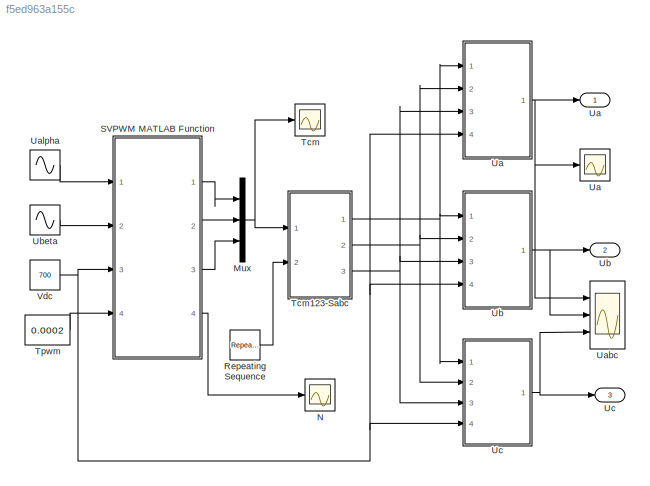
MODEL slx_f5ed963a155c
KIND model
BLOCK [Mux] Mux
  DisplayOption = bar
  Inputs = 3
  Ports = [3, 1]
BLOCK [Scope] N
  DataFormat = StructureWithTime
  Floating = off
  LimitDataPoints = off
  NumInputPorts = 1
  Ports = [1]
  SampleInput = on
  SampleTime = 0
  SaveName = N
  SaveToWorkspace = on
  ShowLegends = off
  YMax = 500
  YMin = -500
BLOCK [Reference] Repeating Sequence  REF=simulink/Sources/Repeating
Sequence
  Ports = [0, 1]
  SourceBlock = simulink/Sources/Repeating\nSequence
  SourceType = Repeating table
  rep_seq_t = [0 1/10000 1/5000]
  rep_seq_y = [0 1/10000 0]
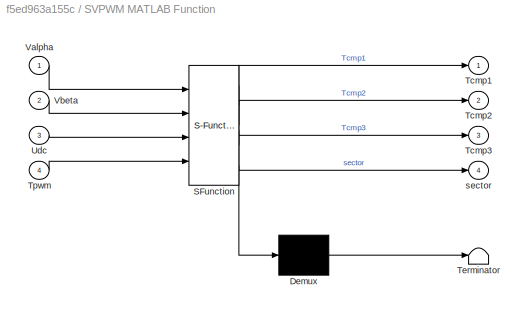
BLOCK [SubSystem] SVPWM MATLAB Function
  ErrorFcn = Stateflow.Translate.translate
  PermitHierarchicalResolution = ExplicitOnly
  Ports = [4, 4]
  RequestExecContextInheritance = off
  SFBlockType = MATLAB Function
  TreatAsAtomicUnit = on
BLOCK [Demux] SVPWM MATLAB Function/ Demux 
  Outputs = 1
  Ports = [1, 1]
BLOCK [S-Function] SVPWM MATLAB Function/ SFunction 
  EnableBusSupport = on
  FunctionName = sf_sfun
  PortCounts = [4 5]
  Ports = [4, 5]
  Tag = Stateflow S-Function svpwm_sfunction1 1
BLOCK [Terminator] SVPWM MATLAB Function/ Terminator 
BLOCK [Outport] SVPWM MATLAB Function/Tcmp1
  IconDisplay = Port number
BLOCK [Outport] SVPWM MATLAB Function/Tcmp2
  IconDisplay = Port number
  Port = 2
BLOCK [Outport] SVPWM MATLAB Function/Tcmp3
  IconDisplay = Port number
  Port = 3
BLOCK [Inport] SVPWM MATLAB Function/Tpwm
  IconDisplay = Port number
  Port = 4
BLOCK [Inport] SVPWM MATLAB Function/Udc
  IconDisplay = Port number
  Port = 3
BLOCK [Inport] SVPWM MATLAB Function/Valpha
  IconDisplay = Port number
BLOCK [Inport] SVPWM MATLAB Function/Vbeta
  IconDisplay = Port number
  Port = 2
BLOCK [Outport] SVPWM MATLAB Function/sector
  IconDisplay = Port number
  Port = 4
BLOCK [Scope] Tcm
  DataFormat = StructureWithTime
  Floating = off
  LimitDataPoints = off
  NumInputPorts = 1
  Ports = [1]
  SampleInput = on
  SampleTime = 0
  SaveName = Tcm
  SaveToWorkspace = on
  ShowLegends = off
  YMax = 500
  YMin = -500
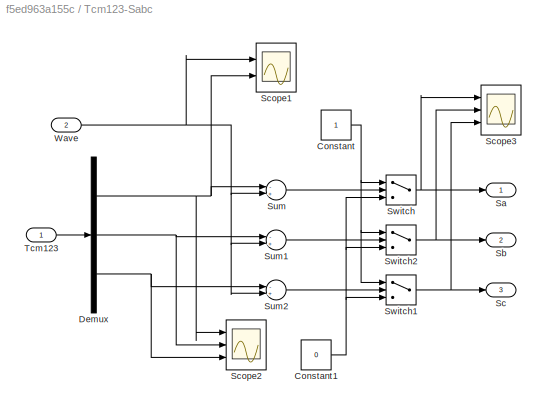
BLOCK [SubSystem] Tcm123-Sabc
  Ports = [2, 3]
  RequestExecContextInheritance = off
BLOCK [Constant] Tcm123-Sabc/Constant
BLOCK [Constant] Tcm123-Sabc/Constant1
  Value = 0
BLOCK [Demux] Tcm123-Sabc/Demux
  DisplayOption = bar
  Outputs = 3
  Ports = [1, 3]
BLOCK [Outport] Tcm123-Sabc/Sa
  IconDisplay = Port number
BLOCK [Outport] Tcm123-Sabc/Sb
  IconDisplay = Port number
  Port = 2
BLOCK [Outport] Tcm123-Sabc/Sc
  IconDisplay = Port number
  Port = 3
BLOCK [Scope] Tcm123-Sabc/Scope1
  DataFormat = StructureWithTime
  Floating = off
  LimitDataPoints = off
  NumInputPorts = 2
  Ports = [2]
  SampleTime = 0
  ShowLegends = off
  TimeRange = 0.028
  YMax = 8.5e-005~2.64e-005
  YMin = 0~2.45e-005
  ZoomMode = xonly
BLOCK [Scope] Tcm123-Sabc/Scope2
  DataFormat = StructureWithTime
  Floating = off
  LimitDataPoints = off
  NumInputPorts = 3
  Ports = [3]
  SampleTime = 0
  SaveName = ScopeData1
  ShowLegends = off
  TimeRange = 0.07000000000000001
  YMax = 6e-005~6e-005~6e-005
  YMin = 2.25e-005~2.25e-005~2.25e-005
  ZoomMode = xonly
BLOCK [Scope] Tcm123-Sabc/Scope3
  DataFormat = StructureWithTime
  Floating = off
  LimitDataPoints = off
  NumInputPorts = 3
  Ports = [3]
  SampleTime = 0
  SaveName = ScopeData11
  ShowLegends = off
  TimeRange = 0.028
  YMax = 8.5e-005~2.64e-005~5
  YMin = 0~2.45e-005~-5
  ZoomMode = xonly
BLOCK [Sum] Tcm123-Sabc/Sum
  InputSameDT = off
  Inputs = -+
  OutDataTypeStr = Inherit: Inherit via internal rule
  Ports = [2, 1]
BLOCK [Sum] Tcm123-Sabc/Sum1
  InputSameDT = off
  Inputs = -+
  OutDataTypeStr = Inherit: Inherit via internal rule
  Ports = [2, 1]
BLOCK [Sum] Tcm123-Sabc/Sum2
  InputSameDT = off
  Inputs = -+
  OutDataTypeStr = Inherit: Inherit via internal rule
  Ports = [2, 1]
BLOCK [Switch] Tcm123-Sabc/Switch
  InputSameDT = off
BLOCK [Switch] Tcm123-Sabc/Switch1
  InputSameDT = off
BLOCK [Switch] Tcm123-Sabc/Switch2
  InputSameDT = off
BLOCK [Inport] Tcm123-Sabc/Tcm123
  IconDisplay = Port number
BLOCK [Inport] Tcm123-Sabc/Wave
  IconDisplay = Port number
  Port = 2
BLOCK [Constant] Tpwm
  Value = 0.0002
BLOCK [Outport] Ua
  IconDisplay = Port number
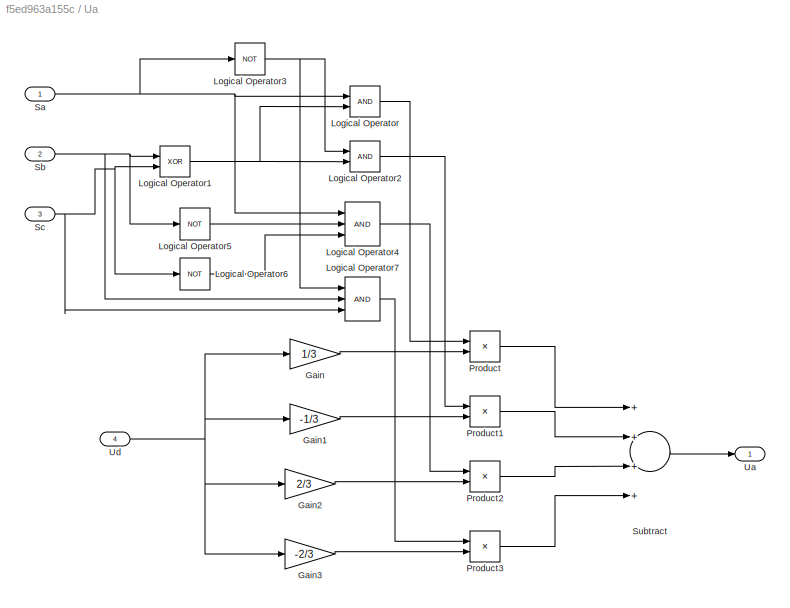
BLOCK [SubSystem] Ua 
  Ports = [4, 1]
  RequestExecContextInheritance = off
BLOCK [Scope] Ua  
  DataFormat = StructureWithTime
  Floating = off
  LimitDataPoints = off
  NumInputPorts = 1
  Ports = [1]
  SampleInput = on
  SampleTime = 0
  SaveName = Ua
  SaveToWorkspace = on
  ShowLegends = off
  YMax = 500
  YMin = -500
BLOCK [Gain] Ua /Gain
  Gain = 1/3
  OutDataTypeStr = Inherit: Inherit via internal rule
  ParamDataTypeStr = Inherit: Inherit via internal rule
  SaturateOnIntegerOverflow = off
BLOCK [Gain] Ua /Gain1
  Gain = -1/3
  OutDataTypeStr = Inherit: Inherit via internal rule
  ParamDataTypeStr = Inherit: Inherit via internal rule
  SaturateOnIntegerOverflow = off
BLOCK [Gain] Ua /Gain2
  Gain = 2/3
  OutDataTypeStr = Inherit: Inherit via internal rule
  ParamDataTypeStr = Inherit: Inherit via internal rule
  SaturateOnIntegerOverflow = off
BLOCK [Gain] Ua /Gain3
  Gain = -2/3
  OutDataTypeStr = Inherit: Inherit via internal rule
  ParamDataTypeStr = Inherit: Inherit via internal rule
  SaturateOnIntegerOverflow = off
BLOCK [Logic] Ua /Logical Operator
  AllPortsSameDT = off
  OutDataTypeStr = boolean
  Ports = [2, 1]
BLOCK [Logic] Ua /Logical Operator1
  AllPortsSameDT = off
  Operator = XOR
  OutDataTypeStr = boolean
  Ports = [2, 1]
BLOCK [Logic] Ua /Logical Operator2
  AllPortsSameDT = off
  OutDataTypeStr = boolean
  Ports = [2, 1]
BLOCK [Logic] Ua /Logical Operator3
  AllPortsSameDT = off
  Operator = NOT
  OutDataTypeStr = boolean
  Ports = [1, 1]
BLOCK [Logic] Ua /Logical Operator4
  AllPortsSameDT = off
  Inputs = 3
  OutDataTypeStr = boolean
  Ports = [3, 1]
BLOCK [Logic] Ua /Logical Operator5
  AllPortsSameDT = off
  Operator = NOT
  OutDataTypeStr = boolean
  Ports = [1, 1]
BLOCK [Logic] Ua /Logical Operator6
  AllPortsSameDT = off
  Operator = NOT
  OutDataTypeStr = boolean
  Ports = [1, 1]
BLOCK [Logic] Ua /Logical Operator7
  AllPortsSameDT = off
  Inputs = 3
  OutDataTypeStr = boolean
  Ports = [3, 1]
BLOCK [Product] Ua /Product
  InputSameDT = off
  OutDataTypeStr = Inherit: Inherit via internal rule
  Ports = [2, 1]
  SaturateOnIntegerOverflow = off
BLOCK [Product] Ua /Product1
  InputSameDT = off
  OutDataTypeStr = Inherit: Inherit via internal rule
  Ports = [2, 1]
  SaturateOnIntegerOverflow = off
BLOCK [Product] Ua /Product2
  InputSameDT = off
  OutDataTypeStr = Inherit: Inherit via internal rule
  Ports = [2, 1]
  SaturateOnIntegerOverflow = off
BLOCK [Product] Ua /Product3
  InputSameDT = off
  OutDataTypeStr = Inherit: Inherit via internal rule
  Ports = [2, 1]
  SaturateOnIntegerOverflow = off
BLOCK [Inport] Ua /Sa
  IconDisplay = Port number
BLOCK [Inport] Ua /Sb
  IconDisplay = Port number
  Port = 2
BLOCK [Inport] Ua /Sc
  IconDisplay = Port number
  Port = 3
BLOCK [Sum] Ua /Subtract
  InputSameDT = off
  Inputs = ++++
  OutDataTypeStr = Inherit: Inherit via internal rule
  Ports = [4, 1]
  SaturateOnIntegerOverflow = off
BLOCK [Outport] Ua /Ua
  IconDisplay = Port number
BLOCK [Inport] Ua /Ud
  IconDisplay = Port number
  Port = 4
BLOCK [Scope] Uabc
  DataFormat = Structure
  Floating = off
  LimitDataPoints = off
  NumInputPorts = 3
  Ports = [3]
  SampleTime = 0
  SaveName = ScopeData7
  ShowLegends = off
  YMax = 500~500~500
  YMin = -500~-500~-500
  ZoomMode = xonly
BLOCK [Sin] Ualpha
  Amplitude = 200
  Frequency = 100*pi
  Phase = pi/2
  Ports = [0, 1]
BLOCK [Outport] Ub
  IconDisplay = Port number
  Port = 2
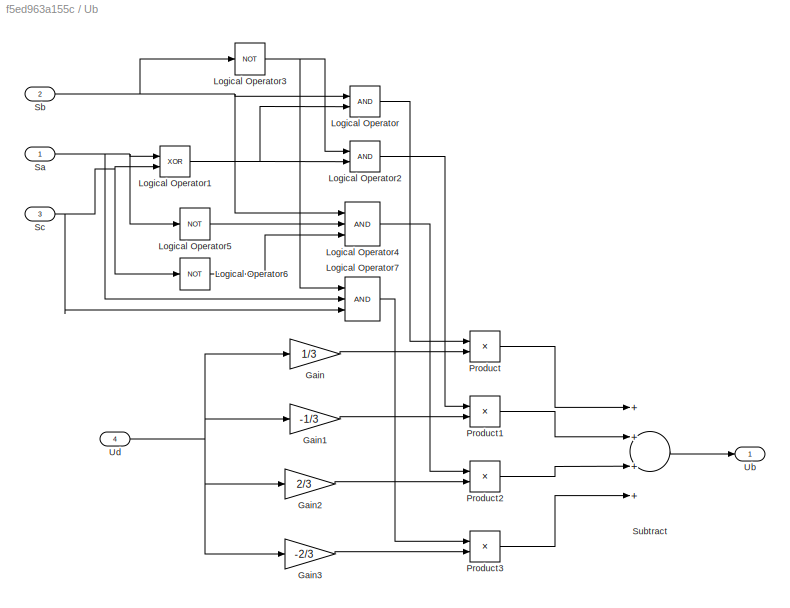
BLOCK [SubSystem] Ub 
  Ports = [4, 1]
  RequestExecContextInheritance = off
BLOCK [Gain] Ub /Gain
  Gain = 1/3
  OutDataTypeStr = Inherit: Inherit via internal rule
  ParamDataTypeStr = Inherit: Inherit via internal rule
  SaturateOnIntegerOverflow = off
BLOCK [Gain] Ub /Gain1
  Gain = -1/3
  OutDataTypeStr = Inherit: Inherit via internal rule
  ParamDataTypeStr = Inherit: Inherit via internal rule
  SaturateOnIntegerOverflow = off
BLOCK [Gain] Ub /Gain2
  Gain = 2/3
  OutDataTypeStr = Inherit: Inherit via internal rule
  ParamDataTypeStr = Inherit: Inherit via internal rule
  SaturateOnIntegerOverflow = off
BLOCK [Gain] Ub /Gain3
  Gain = -2/3
  OutDataTypeStr = Inherit: Inherit via internal rule
  ParamDataTypeStr = Inherit: Inherit via internal rule
  SaturateOnIntegerOverflow = off
BLOCK [Logic] Ub /Logical Operator
  AllPortsSameDT = off
  OutDataTypeStr = boolean
  Ports = [2, 1]
BLOCK [Logic] Ub /Logical Operator1
  AllPortsSameDT = off
  Operator = XOR
  OutDataTypeStr = boolean
  Ports = [2, 1]
BLOCK [Logic] Ub /Logical Operator2
  AllPortsSameDT = off
  OutDataTypeStr = boolean
  Ports = [2, 1]
BLOCK [Logic] Ub /Logical Operator3
  AllPortsSameDT = off
  Operator = NOT
  OutDataTypeStr = boolean
  Ports = [1, 1]
BLOCK [Logic] Ub /Logical Operator4
  AllPortsSameDT = off
  Inputs = 3
  OutDataTypeStr = boolean
  Ports = [3, 1]
BLOCK [Logic] Ub /Logical Operator5
  AllPortsSameDT = off
  Operator = NOT
  OutDataTypeStr = boolean
  Ports = [1, 1]
BLOCK [Logic] Ub /Logical Operator6
  AllPortsSameDT = off
  Operator = NOT
  OutDataTypeStr = boolean
  Ports = [1, 1]
BLOCK [Logic] Ub /Logical Operator7
  AllPortsSameDT = off
  Inputs = 3
  OutDataTypeStr = boolean
  Ports = [3, 1]
BLOCK [Product] Ub /Product
  InputSameDT = off
  OutDataTypeStr = Inherit: Inherit via internal rule
  Ports = [2, 1]
  SaturateOnIntegerOverflow = off
BLOCK [Product] Ub /Product1
  InputSameDT = off
  OutDataTypeStr = Inherit: Inherit via internal rule
  Ports = [2, 1]
  SaturateOnIntegerOverflow = off
BLOCK [Product] Ub /Product2
  InputSameDT = off
  OutDataTypeStr = Inherit: Inherit via internal rule
  Ports = [2, 1]
  SaturateOnIntegerOverflow = off
BLOCK [Product] Ub /Product3
  InputSameDT = off
  OutDataTypeStr = Inherit: Inherit via internal rule
  Ports = [2, 1]
  SaturateOnIntegerOverflow = off
BLOCK [Inport] Ub /Sa
  IconDisplay = Port number
BLOCK [Inport] Ub /Sb
  IconDisplay = Port number
  Port = 2
BLOCK [Inport] Ub /Sc
  IconDisplay = Port number
  Port = 3
BLOCK [Sum] Ub /Subtract
  InputSameDT = off
  Inputs = ++++
  OutDataTypeStr = Inherit: Inherit via internal rule
  Ports = [4, 1]
  SaturateOnIntegerOverflow = off
BLOCK [Outport] Ub /Ub
  IconDisplay = Port number
BLOCK [Inport] Ub /Ud
  IconDisplay = Port number
  Port = 4
BLOCK [Sin] Ubeta
  Amplitude = 200
  Frequency = 100*pi
  Ports = [0, 1]
BLOCK [Outport] Uc
  IconDisplay = Port number
  Port = 3
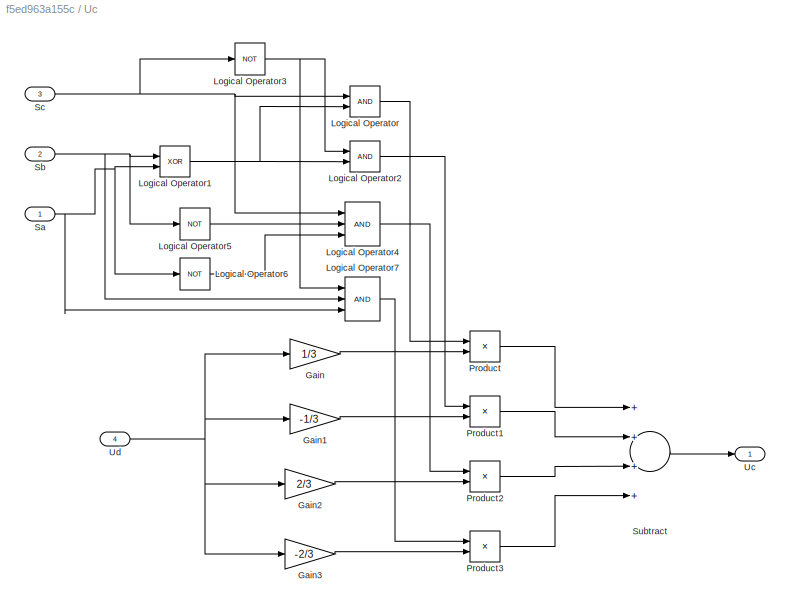
BLOCK [SubSystem] Uc  
  Ports = [4, 1]
  RequestExecContextInheritance = off
BLOCK [Gain] Uc  /Gain
  Gain = 1/3
  OutDataTypeStr = Inherit: Inherit via internal rule
  ParamDataTypeStr = Inherit: Inherit via internal rule
  SaturateOnIntegerOverflow = off
BLOCK [Gain] Uc  /Gain1
  Gain = -1/3
  OutDataTypeStr = Inherit: Inherit via internal rule
  ParamDataTypeStr = Inherit: Inherit via internal rule
  SaturateOnIntegerOverflow = off
BLOCK [Gain] Uc  /Gain2
  Gain = 2/3
  OutDataTypeStr = Inherit: Inherit via internal rule
  ParamDataTypeStr = Inherit: Inherit via internal rule
  SaturateOnIntegerOverflow = off
BLOCK [Gain] Uc  /Gain3
  Gain = -2/3
  OutDataTypeStr = Inherit: Inherit via internal rule
  ParamDataTypeStr = Inherit: Inherit via internal rule
  SaturateOnIntegerOverflow = off
BLOCK [Logic] Uc  /Logical Operator
  AllPortsSameDT = off
  OutDataTypeStr = boolean
  Ports = [2, 1]
BLOCK [Logic] Uc  /Logical Operator1
  AllPortsSameDT = off
  Operator = XOR
  OutDataTypeStr = boolean
  Ports = [2, 1]
BLOCK [Logic] Uc  /Logical Operator2
  AllPortsSameDT = off
  OutDataTypeStr = boolean
  Ports = [2, 1]
BLOCK [Logic] Uc  /Logical Operator3
  AllPortsSameDT = off
  Operator = NOT
  OutDataTypeStr = boolean
  Ports = [1, 1]
BLOCK [Logic] Uc  /Logical Operator4
  AllPortsSameDT = off
  Inputs = 3
  OutDataTypeStr = boolean
  Ports = [3, 1]
BLOCK [Logic] Uc  /Logical Operator5
  AllPortsSameDT = off
  Operator = NOT
  OutDataTypeStr = boolean
  Ports = [1, 1]
BLOCK [Logic] Uc  /Logical Operator6
  AllPortsSameDT = off
  Operator = NOT
  OutDataTypeStr = boolean
  Ports = [1, 1]
BLOCK [Logic] Uc  /Logical Operator7
  AllPortsSameDT = off
  Inputs = 3
  OutDataTypeStr = boolean
  Ports = [3, 1]
BLOCK [Product] Uc  /Product
  InputSameDT = off
  OutDataTypeStr = Inherit: Inherit via internal rule
  Ports = [2, 1]
  SaturateOnIntegerOverflow = off
BLOCK [Product] Uc  /Product1
  InputSameDT = off
  OutDataTypeStr = Inherit: Inherit via internal rule
  Ports = [2, 1]
  SaturateOnIntegerOverflow = off
BLOCK [Product] Uc  /Product2
  InputSameDT = off
  OutDataTypeStr = Inherit: Inherit via internal rule
  Ports = [2, 1]
  SaturateOnIntegerOverflow = off
BLOCK [Product] Uc  /Product3
  InputSameDT = off
  OutDataTypeStr = Inherit: Inherit via internal rule
  Ports = [2, 1]
  SaturateOnIntegerOverflow = off
BLOCK [Inport] Uc  /Sa 
  IconDisplay = Port number
BLOCK [Inport] Uc  /Sb
  IconDisplay = Port number
  Port = 2
BLOCK [Inport] Uc  /Sc
  IconDisplay = Port number
  Port = 3
BLOCK [Sum] Uc  /Subtract
  InputSameDT = off
  Inputs = ++++
  OutDataTypeStr = Inherit: Inherit via internal rule
  Ports = [4, 1]
  SaturateOnIntegerOverflow = off
BLOCK [Outport] Uc  /Uc
  IconDisplay = Port number
BLOCK [Inport] Uc  /Ud
  IconDisplay = Port number
  Port = 4
BLOCK [Constant] Vdc
  Value = 700
NET Mux:1 -> Tcm123-Sabc:1, Tcm:1
LINE Repeating Sequence:1 -> Tcm123-Sabc:2
LINE SVPWM MATLAB Function:1 -> Mux:1
LINE SVPWM MATLAB Function:2 -> Mux:2
LINE SVPWM MATLAB Function:3 -> Mux:3
LINE SVPWM MATLAB Function:4 -> N:1
NET Tcm123-Sabc/Constant1:1 -> Tcm123-Sabc/Switch1:3, Tcm123-Sabc/Switch2:3, Tcm123-Sabc/Switch:3
NET Tcm123-Sabc/Constant:1 -> Tcm123-Sabc/Switch1:1, Tcm123-Sabc/Switch2:1, Tcm123-Sabc/Switch:1
NET Tcm123-Sabc/Demux:1 -> Tcm123-Sabc/Scope1:2, Tcm123-Sabc/Scope2:1, Tcm123-Sabc/Sum:1
NET Tcm123-Sabc/Demux:2 -> Tcm123-Sabc/Scope2:2, Tcm123-Sabc/Sum1:1
NET Tcm123-Sabc/Demux:3 -> Tcm123-Sabc/Scope2:3, Tcm123-Sabc/Sum2:1
LINE Tcm123-Sabc/Sum1:1 -> Tcm123-Sabc/Switch2:2
LINE Tcm123-Sabc/Sum2:1 -> Tcm123-Sabc/Switch1:2
LINE Tcm123-Sabc/Sum:1 -> Tcm123-Sabc/Switch:2
NET Tcm123-Sabc/Switch1:1 -> Tcm123-Sabc/Sc:1, Tcm123-Sabc/Scope3:3
NET Tcm123-Sabc/Switch2:1 -> Tcm123-Sabc/Sb:1, Tcm123-Sabc/Scope3:2
NET Tcm123-Sabc/Switch:1 -> Tcm123-Sabc/Sa:1, Tcm123-Sabc/Scope3:1
LINE Tcm123-Sabc/Tcm123:1 -> Tcm123-Sabc/Demux:1
NET Tcm123-Sabc/Wave:1 -> Tcm123-Sabc/Scope1:1, Tcm123-Sabc/Sum1:2, Tcm123-Sabc/Sum2:2, Tcm123-Sabc/Sum:2
NET Tcm123-Sabc:1 -> Ua :1, Ub :1, Uc  :1
NET Tcm123-Sabc:2 -> Ua :2, Ub :2, Uc  :2
NET Tcm123-Sabc:3 -> Ua :3, Ub :3, Uc  :3
LINE Tpwm:1 -> SVPWM MATLAB Function:4
LINE Ua /Gain1:1 -> Ua /Product1:2
LINE Ua /Gain2:1 -> Ua /Product2:2
LINE Ua /Gain3:1 -> Ua /Product3:2
LINE Ua /Gain:1 -> Ua /Product:2
NET Ua /Logical Operator1:1 -> Ua /Logical Operator2:2, Ua /Logical Operator:2
LINE Ua /Logical Operator2:1 -> Ua /Product1:1
NET Ua /Logical Operator3:1 -> Ua /Logical Operator2:1, Ua /Logical Operator7:1
LINE Ua /Logical Operator4:1 -> Ua /Product2:1
LINE Ua /Logical Operator5:1 -> Ua /Logical Operator4:2
LINE Ua /Logical Operator6:1 -> Ua /Logical Operator4:3
LINE Ua /Logical Operator7:1 -> Ua /Product3:1
LINE Ua /Logical Operator:1 -> Ua /Product:1
LINE Ua /Product1:1 -> Ua /Subtract:2
LINE Ua /Product2:1 -> Ua /Subtract:3
LINE Ua /Product3:1 -> Ua /Subtract:4
LINE Ua /Product:1 -> Ua /Subtract:1
NET Ua /Sa:1 -> Ua /Logical Operator3:1, Ua /Logical Operator4:1, Ua /Logical Operator:1
NET Ua /Sb:1 -> Ua /Logical Operator1:1, Ua /Logical Operator5:1, Ua /Logical Operator7:2
NET Ua /Sc:1 -> Ua /Logical Operator1:2, Ua /Logical Operator6:1, Ua /Logical Operator7:3
LINE Ua /Subtract:1 -> Ua /Ua:1
NET Ua /Ud:1 -> Ua /Gain1:1, Ua /Gain2:1, Ua /Gain3:1, Ua /Gain:1
NET Ua :1 -> Ua  :1, Ua:1, Uabc:1
LINE Ualpha:1 -> SVPWM MATLAB Function:1
LINE Ub /Gain1:1 -> Ub /Product1:2
LINE Ub /Gain2:1 -> Ub /Product2:2
LINE Ub /Gain3:1 -> Ub /Product3:2
LINE Ub /Gain:1 -> Ub /Product:2
NET Ub /Logical Operator1:1 -> Ub /Logical Operator2:2, Ub /Logical Operator:2
LINE Ub /Logical Operator2:1 -> Ub /Product1:1
NET Ub /Logical Operator3:1 -> Ub /Logical Operator2:1, Ub /Logical Operator7:1
LINE Ub /Logical Operator4:1 -> Ub /Product2:1
LINE Ub /Logical Operator5:1 -> Ub /Logical Operator4:2
LINE Ub /Logical Operator6:1 -> Ub /Logical Operator4:3
LINE Ub /Logical Operator7:1 -> Ub /Product3:1
LINE Ub /Logical Operator:1 -> Ub /Product:1
LINE Ub /Product1:1 -> Ub /Subtract:2
LINE Ub /Product2:1 -> Ub /Subtract:3
LINE Ub /Product3:1 -> Ub /Subtract:4
LINE Ub /Product:1 -> Ub /Subtract:1
NET Ub /Sa:1 -> Ub /Logical Operator1:1, Ub /Logical Operator5:1, Ub /Logical Operator7:2
NET Ub /Sb:1 -> Ub /Logical Operator3:1, Ub /Logical Operator4:1, Ub /Logical Operator:1
NET Ub /Sc:1 -> Ub /Logical Operator1:2, Ub /Logical Operator6:1, Ub /Logical Operator7:3
LINE Ub /Subtract:1 -> Ub /Ub:1
NET Ub /Ud:1 -> Ub /Gain1:1, Ub /Gain2:1, Ub /Gain3:1, Ub /Gain:1
NET Ub :1 -> Uabc:2, Ub:1
LINE Ubeta:1 -> SVPWM MATLAB Function:2
LINE Uc  /Gain1:1 -> Uc  /Product1:2
LINE Uc  /Gain2:1 -> Uc  /Product2:2
LINE Uc  /Gain3:1 -> Uc  /Product3:2
LINE Uc  /Gain:1 -> Uc  /Product:2
NET Uc  /Logical Operator1:1 -> Uc  /Logical Operator2:2, Uc  /Logical Operator:2
LINE Uc  /Logical Operator2:1 -> Uc  /Product1:1
NET Uc  /Logical Operator3:1 -> Uc  /Logical Operator2:1, Uc  /Logical Operator7:1
LINE Uc  /Logical Operator4:1 -> Uc  /Product2:1
LINE Uc  /Logical Operator5:1 -> Uc  /Logical Operator4:2
LINE Uc  /Logical Operator6:1 -> Uc  /Logical Operator4:3
LINE Uc  /Logical Operator7:1 -> Uc  /Product3:1
LINE Uc  /Logical Operator:1 -> Uc  /Product:1
LINE Uc  /Product1:1 -> Uc  /Subtract:2
LINE Uc  /Product2:1 -> Uc  /Subtract:3
LINE Uc  /Product3:1 -> Uc  /Subtract:4
LINE Uc  /Product:1 -> Uc  /Subtract:1
NET Uc  /Sa :1 -> Uc  /Logical Operator1:2, Uc  /Logical Operator6:1, Uc  /Logical Operator7:3
NET Uc  /Sb:1 -> Uc  /Logical Operator1:1, Uc  /Logical Operator5:1, Uc  /Logical Operator7:2
NET Uc  /Sc:1 -> Uc  /Logical Operator3:1, Uc  /Logical Operator4:1, Uc  /Logical Operator:1
LINE Uc  /Subtract:1 -> Uc  /Uc:1
NET Uc  /Ud:1 -> Uc  /Gain1:1, Uc  /Gain2:1, Uc  /Gain3:1, Uc  /Gain:1
NET Uc  :1 -> Uabc:3, Uc:1
NET Vdc:1 -> SVPWM MATLAB Function:3, Ua :4, Ub :4, Uc  :4
note: NET lines group one-source signal fan-out (src -> all destinations, sorted); 1:1 wires keep LINE
CHART SVPWM
MATLAB Function states=1 transitions=1
  STATE_LABEL 'eML_blk_kernel()'
  STATE_LABEL 'SCRIPT:\nfunction [Tcmp1,Tcmp2,Tcmp3,sector] = fcn(Valpha,Vbeta,Udc,Tpwm)\n%#codegen\n\nsector = 0;\nTcmp1 = 0;\nTcmp2 = 0;\nTcmp3 = 0;\n\n%========Parameters statement================\n\n    Vref1 = Vbeta;\t\t\t\t\t\t\t                   \n    Vref2 = (sqrt(3)*Valpha - Vbeta)/2; \t\t\t\t    \n    Vref3 = (-sqrt(3)*Valpha - Vbeta)/2;\t\t\t\t\t\n   \n %========Sector calculation=================\n\n  if (Vref1>0)\n\t   sector = 1;\n ...<+1213ch>'
